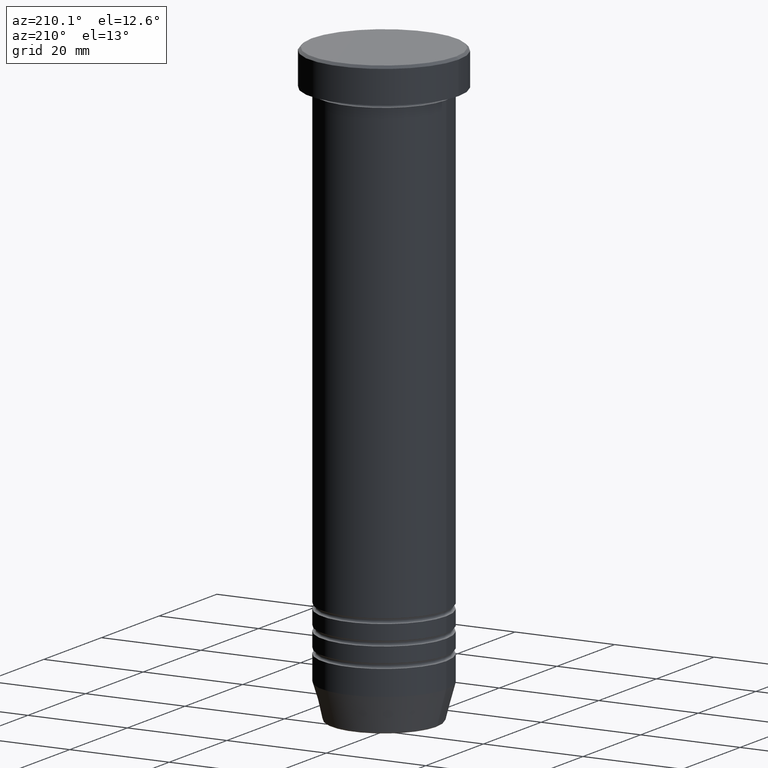
[diagram: clean part render]
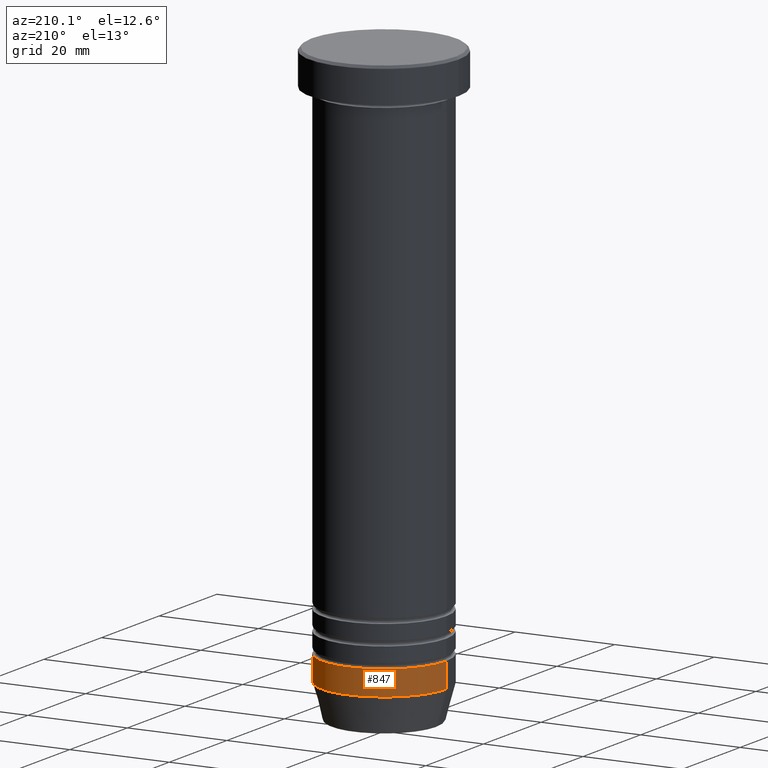
[diagram: same view with one face highlighted and labeled with its STEP entity id]
A machine part, auxiliary view. The second image highlights one B-rep face of the part: STEP entity #847.
In plain terms, the highlighted cylindrical surface (partial cylindrical patch) has radius 12.5 mm, axis along (-0, -0, 1).
Its self-contained STEP definition (entity closure, byte-faithful):
#23 = DIRECTION ( 'NONE',  ( -0.000000000000000000, -0.000000000000000000, 1.000000000000000000 ) ) ;
#48 = EDGE_CURVE ( 'NONE', #991, #719, #682, .T. ) ;
#93 = CARTESIAN_POINT ( 'NONE',  ( -12.50000000000000000, 1.530808498934191521E-15, -107.9999999999999858 ) ) ;
#107 = ORIENTED_EDGE ( 'NONE', *, *, #1029, .F. ) ;
#140 = VECTOR ( 'NONE', #23, 1000.000000000000000 ) ;
#143 = ORIENTED_EDGE ( 'NONE', *, *, #797, .T. ) ;
#181 = DIRECTION ( 'NONE',  ( -0.000000000000000000, -0.000000000000000000, 1.000000000000000000 ) ) ;
#197 = CARTESIAN_POINT ( 'NONE',  ( -12.50000000000000000, 1.530808498934191521E-15, -112.9999999999999858 ) ) ;
#249 = AXIS2_PLACEMENT_3D ( 'NONE', #608, #596, #916 ) ;
#256 = FACE_OUTER_BOUND ( 'NONE', #586, .T. ) ;
#275 = CYLINDRICAL_SURFACE ( 'NONE', #249, 12.50000000000000000 ) ;
#438 = LINE ( 'NONE', #905, #140 ) ;
#445 = DIRECTION ( 'NONE',  ( 1.000000000000000000, 0.000000000000000000, 0.000000000000000000 ) ) ;
#481 = CIRCLE ( 'NONE', #702, 12.50000000000000000 ) ;
#519 = ORIENTED_EDGE ( 'NONE', *, *, #885, .T. ) ;
#534 = CARTESIAN_POINT ( 'NONE',  ( 12.50000000000000000, 0.000000000000000000, -112.9999999999999858 ) ) ;
#586 = EDGE_LOOP ( 'NONE', ( #519, #143, #107, #974 ) ) ;
#596 = DIRECTION ( 'NONE',  ( -0.000000000000000000, -0.000000000000000000, 1.000000000000000000 ) ) ;
#603 = CIRCLE ( 'NONE', #686, 12.50000000000000000 ) ;
#608 = CARTESIAN_POINT ( 'NONE',  ( 0.000000000000000000, 0.000000000000000000, 0.000000000000000000 ) ) ;
#621 = DIRECTION ( 'NONE',  ( -0.000000000000000000, -0.000000000000000000, 1.000000000000000000 ) ) ;
#635 = VERTEX_POINT ( 'NONE', #197 ) ;
#673 = CARTESIAN_POINT ( 'NONE',  ( 12.50000000000000000, 0.000000000000000000, 0.000000000000000000 ) ) ;
#682 = LINE ( 'NONE', #673, #1002 ) ;
#686 = AXIS2_PLACEMENT_3D ( 'NONE', #891, #717, #722 ) ;
#702 = AXIS2_PLACEMENT_3D ( 'NONE', #713, #621, #445 ) ;
#713 = CARTESIAN_POINT ( 'NONE',  ( 0.000000000000000000, 0.000000000000000000, -112.9999999999999858 ) ) ;
#717 = DIRECTION ( 'NONE',  ( -0.000000000000000000, -0.000000000000000000, 1.000000000000000000 ) ) ;
#719 = VERTEX_POINT ( 'NONE', #864 ) ;
#722 = DIRECTION ( 'NONE',  ( 1.000000000000000000, 0.000000000000000000, 0.000000000000000000 ) ) ;
#790 = VERTEX_POINT ( 'NONE', #93 ) ;
#797 = EDGE_CURVE ( 'NONE', #635, #790, #438, .T. ) ;
#847 = ADVANCED_FACE ( 'NONE', ( #256 ), #275, .T. ) ;
#864 = CARTESIAN_POINT ( 'NONE',  ( 12.50000000000000000, 0.000000000000000000, -107.9999999999999858 ) ) ;
#885 = EDGE_CURVE ( 'NONE', #991, #635, #481, .T. ) ;
#891 = CARTESIAN_POINT ( 'NONE',  ( 0.000000000000000000, 0.000000000000000000, -107.9999999999999858 ) ) ;
#905 = CARTESIAN_POINT ( 'NONE',  ( -12.50000000000000000, 1.530808498934191521E-15, 0.000000000000000000 ) ) ;
#916 = DIRECTION ( 'NONE',  ( 1.000000000000000000, 0.000000000000000000, 0.000000000000000000 ) ) ;
#974 = ORIENTED_EDGE ( 'NONE', *, *, #48, .F. ) ;
#991 = VERTEX_POINT ( 'NONE', #534 ) ;
#1002 = VECTOR ( 'NONE', #181, 1000.000000000000000 ) ;
#1029 = EDGE_CURVE ( 'NONE', #719, #790, #603, .T. ) ;